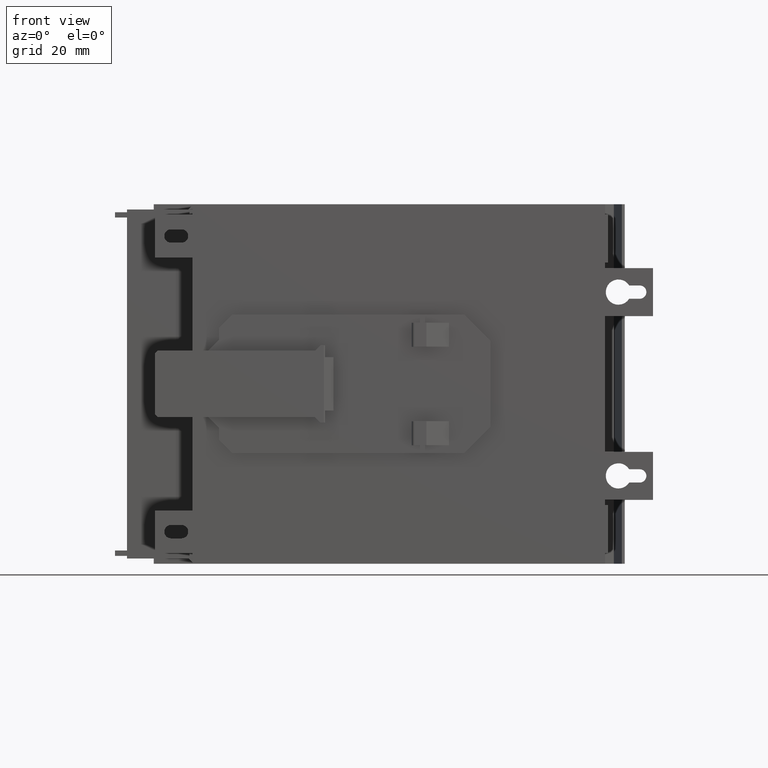
[diagram: clean part render]
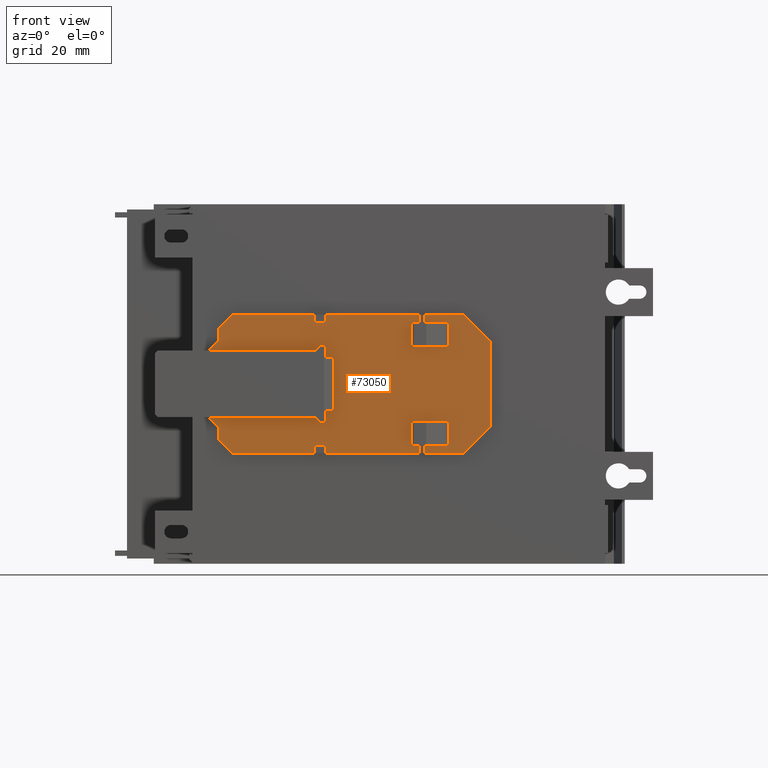
[diagram: same view with one face highlighted and labeled with its STEP entity id]
A machine part, front view. The second image highlights one B-rep face of the part: STEP entity #73050.
In plain terms, the highlighted planar face has unit normal (0, -1, 0).
Its self-contained STEP definition (entity closure, byte-faithful):
#64120=CARTESIAN_POINT('',(51.,-4.,-48.9));
#64130=VERTEX_POINT('',#64120);
#64160=CARTESIAN_POINT('',(25.,-4.,-48.9));
#64170=DIRECTION('',(-1.,0.,0.));
#64180=VECTOR('',#64170,1.);
#64190=LINE('',#64160,#64180);
#64200=CARTESIAN_POINT('',(48.,-4.,-48.9));
#64210=VERTEX_POINT('',#64200);
#64220=EDGE_CURVE('',#64130,#64210,#64190,.T.);
#64570=CARTESIAN_POINT('',(51.,-4.,-44.9));
#64580=VERTEX_POINT('',#64570);
#64630=CARTESIAN_POINT('',(51.,-4.,-66.65));
#64640=DIRECTION('',(0.,0.,1.));
#64650=VECTOR('',#64640,1.);
#64660=LINE('',#64630,#64650);
#64670=CARTESIAN_POINT('',(51.,-4.,-14.05));
#64680=VERTEX_POINT('',#64670);
#64690=EDGE_CURVE('',#64580,#64680,#64660,.T.);
#64910=CARTESIAN_POINT('',(51.,-4.,-101.05));
#64920=VERTEX_POINT('',#64910);
#64950=CARTESIAN_POINT('',(51.,-4.,-86.4));
#64960=VERTEX_POINT('',#64950);
#64970=EDGE_CURVE('',#64920,#64960,#64660,.T.);
#65190=CARTESIAN_POINT('',(51.,-4.,-84.4));
#65200=VERTEX_POINT('',#65190);
#65230=EDGE_CURVE('',#65200,#64130,#64660,.T.);
#65590=CARTESIAN_POINT('',(48.,-4.,-44.9));
#65600=VERTEX_POINT('',#65590);
#65630=CARTESIAN_POINT('',(25.,-4.,-44.8999999999999));
#65640=DIRECTION('',(1.,0.,0.));
#65650=VECTOR('',#65640,1.);
#65660=LINE('',#65630,#65650);
#65670=EDGE_CURVE('',#65600,#64580,#65660,.T.);
#65910=CARTESIAN_POINT('',(9.,-4.,-111.05));
#65920=VERTEX_POINT('',#65910);
#65950=CARTESIAN_POINT('',(25.,-4.,-111.05));
#65960=DIRECTION('',(1.,0.,0.));
#65970=VECTOR('',#65960,1.);
#65980=LINE('',#65950,#65970);
#65990=CARTESIAN_POINT('',(41.,-4.,-111.05));
#66000=VERTEX_POINT('',#65990);
#66010=EDGE_CURVE('',#65920,#66000,#65980,.T.);
#66330=CARTESIAN_POINT('',(25.,-4.,-127.05));
#66340=DIRECTION('',(0.707106781186548,0.,0.707106781186548));
#66350=VECTOR('',#66340,1.);
#66360=LINE('',#66330,#66350);
#66370=EDGE_CURVE('',#66000,#64920,#66360,.T.);
#66700=CARTESIAN_POINT('',(25.,-4.,-86.4));
#66710=DIRECTION('',(-1.,0.,0.));
#66720=VECTOR('',#66710,1.);
#66730=LINE('',#66700,#66720);
#66740=CARTESIAN_POINT('',(48.,-4.,-86.4));
#66750=VERTEX_POINT('',#66740);
#66760=EDGE_CURVE('',#64960,#66750,#66730,.T.);
#67130=CARTESIAN_POINT('',(39.,-4.,-84.4));
#67140=VERTEX_POINT('',#67130);
#67170=CARTESIAN_POINT('',(25.,-4.,-84.4));
#67180=DIRECTION('',(1.,0.,0.));
#67190=VECTOR('',#67180,1.);
#67200=LINE('',#67170,#67190);
#67210=EDGE_CURVE('',#67140,#65200,#67200,.T.);
#68870=CARTESIAN_POINT('',(39.,-4.,-95.39999999999));
#68880=VERTEX_POINT('',#68870);
#68910=CARTESIAN_POINT('',(39.,-4.,-66.65));
#68920=DIRECTION('',(0.,0.,-1.));
#68930=VECTOR('',#68920,1.);
#68940=LINE('',#68910,#68930);
#68950=EDGE_CURVE('',#67140,#68880,#68940,.T.);
#69570=CARTESIAN_POINT('',(48.,-4.,-95.39999999999));
#69580=VERTEX_POINT('',#69570);
#69610=CARTESIAN_POINT('',(25.,-4.,-95.4));
#69620=DIRECTION('',(1.,0.,0.));
#69630=VECTOR('',#69620,1.);
#69640=LINE('',#69610,#69630);
#69650=EDGE_CURVE('',#68880,#69580,#69640,.T.);
#70160=CARTESIAN_POINT('',(48.,-4.,-66.65));
#70170=DIRECTION('',(0.,0.,1.));
#70180=VECTOR('',#70170,1.);
#70190=LINE('',#70160,#70180);
#70200=EDGE_CURVE('',#69580,#66750,#70190,.T.);
#70620=CARTESIAN_POINT('',(31.347612,-4.,-29.997329));
#70630=DIRECTION('',(0.,-1.,0.));
#70640=DIRECTION('',(0.,0.,-1.));
#70650=AXIS2_PLACEMENT_3D('',#70620,#70630,#70640);
#70660=PLANE('',#70650);
#70670=CARTESIAN_POINT('',(25.,-4.,-9.04999999999999));
#70680=DIRECTION('',(-1.,0.,0.));
#70690=VECTOR('',#70680,1.);
#70700=LINE('',#70670,#70690);
#70710=CARTESIAN_POINT('',(46.,-4.,-9.04999999999999));
#70720=VERTEX_POINT('',#70710);
#70730=CARTESIAN_POINT('',(41.5,-4.,-9.04999999999999));
#70740=VERTEX_POINT('',#70730);
#70750=EDGE_CURVE('',#70720,#70740,#70700,.T.);
#70760=ORIENTED_EDGE('',*,*,#70750,.T.);
#70770=CARTESIAN_POINT('',(25.,-4.,11.95));
#70780=DIRECTION('',(-0.707106781186548,0.,0.707106781186548));
#70790=VECTOR('',#70780,1.);
#70800=LINE('',#70770,#70790);
#70810=EDGE_CURVE('',#64680,#70720,#70800,.T.);
#70820=ORIENTED_EDGE('',*,*,#70810,.T.);
#70830=ORIENTED_EDGE('',*,*,#64690,.T.);
#70840=ORIENTED_EDGE('',*,*,#65670,.T.);
#70850=CARTESIAN_POINT('',(48.,-4.,-66.65));
#70860=DIRECTION('',(0.,0.,1.));
#70870=VECTOR('',#70860,1.);
#70880=LINE('',#70850,#70870);
#70890=EDGE_CURVE('',#64210,#65600,#70880,.T.);
#70900=ORIENTED_EDGE('',*,*,#70890,.T.);
#70910=ORIENTED_EDGE('',*,*,#64220,.T.);
#70920=ORIENTED_EDGE('',*,*,#65230,.T.);
#70930=ORIENTED_EDGE('',*,*,#67210,.T.);
#70940=ORIENTED_EDGE('',*,*,#68950,.F.);
#70950=ORIENTED_EDGE('',*,*,#69650,.F.);
#70960=ORIENTED_EDGE('',*,*,#70200,.F.);
#70970=ORIENTED_EDGE('',*,*,#66760,.T.);
#70980=ORIENTED_EDGE('',*,*,#64970,.T.);
#70990=ORIENTED_EDGE('',*,*,#66370,.T.);
#71000=ORIENTED_EDGE('',*,*,#66010,.T.);
#71010=CARTESIAN_POINT('',(25.,-4.,-127.05));
#71020=DIRECTION('',(0.707106781186548,0.,-0.707106781186548));
#71030=VECTOR('',#71020,1.);
#71040=LINE('',#71010,#71030);
#71050=CARTESIAN_POINT('',(-0.999999999999996,-4.,-101.05));
#71060=VERTEX_POINT('',#71050);
#71070=EDGE_CURVE('',#71060,#65920,#71040,.T.);
#71080=ORIENTED_EDGE('',*,*,#71070,.T.);
#71090=CARTESIAN_POINT('',(-0.999999999999996,-4.,-66.65));
#71100=DIRECTION('',(0.,0.,-1.));
#71110=VECTOR('',#71100,1.);
#71120=LINE('',#71090,#71110);
#71130=CARTESIAN_POINT('',(-0.999999999999996,-4.,-86.4));
#71140=VERTEX_POINT('',#71130);
#71150=EDGE_CURVE('',#71140,#71060,#71120,.T.);
#71160=ORIENTED_EDGE('',*,*,#71150,.T.);
#71170=CARTESIAN_POINT('',(25.,-4.,-86.4));
#71180=DIRECTION('',(1.,0.,0.));
#71190=VECTOR('',#71180,1.);
#71200=LINE('',#71170,#71190);
#71210=CARTESIAN_POINT('',(2.,-4.,-86.4));
#71220=VERTEX_POINT('',#71210);
#71230=EDGE_CURVE('',#71140,#71220,#71200,.T.);
#71240=ORIENTED_EDGE('',*,*,#71230,.F.);
#71250=CARTESIAN_POINT('',(2.,-4.,-66.65));
#71260=DIRECTION('',(0.,0.,1.));
#71270=VECTOR('',#71260,1.);
#71280=LINE('',#71250,#71270);
#71290=CARTESIAN_POINT('',(2.,-4.,-95.4));
#71300=VERTEX_POINT('',#71290);
#71310=EDGE_CURVE('',#71300,#71220,#71280,.T.);
#71320=ORIENTED_EDGE('',*,*,#71310,.T.);
#71330=CARTESIAN_POINT('',(25.,-4.,-95.4));
#71340=DIRECTION('',(-1.,0.,0.));
#71350=VECTOR('',#71340,1.);
#71360=LINE('',#71330,#71350);
#71370=CARTESIAN_POINT('',(11.,-4.,-95.39999999999));
#71380=VERTEX_POINT('',#71370);
#71390=EDGE_CURVE('',#71380,#71300,#71360,.T.);
#71400=ORIENTED_EDGE('',*,*,#71390,.T.);
#71410=CARTESIAN_POINT('',(11.,-4.,-66.65));
#71420=DIRECTION('',(0.,0.,-1.));
#71430=VECTOR('',#71420,1.);
#71440=LINE('',#71410,#71430);
#71450=CARTESIAN_POINT('',(11.,-4.,-84.4));
#71460=VERTEX_POINT('',#71450);
#71470=EDGE_CURVE('',#71460,#71380,#71440,.T.);
#71480=ORIENTED_EDGE('',*,*,#71470,.T.);
#71490=CARTESIAN_POINT('',(25.,-4.,-84.4));
#71500=DIRECTION('',(-1.,0.,0.));
#71510=VECTOR('',#71500,1.);
#71520=LINE('',#71490,#71510);
#71530=CARTESIAN_POINT('',(-0.999999999999996,-4.,-84.4));
#71540=VERTEX_POINT('',#71530);
#71550=EDGE_CURVE('',#71460,#71540,#71520,.T.);
#71560=ORIENTED_EDGE('',*,*,#71550,.F.);
#71570=CARTESIAN_POINT('',(-0.999999999999996,-4.,-48.9));
#71580=VERTEX_POINT('',#71570);
#71590=EDGE_CURVE('',#71580,#71540,#71120,.T.);
#71600=ORIENTED_EDGE('',*,*,#71590,.T.);
#71610=CARTESIAN_POINT('',(25.,-4.,-48.9));
#71620=DIRECTION('',(1.,0.,0.));
#71630=VECTOR('',#71620,1.);
#71640=LINE('',#71610,#71630);
#71650=CARTESIAN_POINT('',(2.,-4.,-48.9));
#71660=VERTEX_POINT('',#71650);
#71670=EDGE_CURVE('',#71580,#71660,#71640,.T.);
#71680=ORIENTED_EDGE('',*,*,#71670,.F.);
#71690=CARTESIAN_POINT('',(2.,-4.,-66.65));
#71700=DIRECTION('',(0.,0.,1.));
#71710=VECTOR('',#71700,1.);
#71720=LINE('',#71690,#71710);
#71730=CARTESIAN_POINT('',(2.,-4.,-44.8999999999999));
#71740=VERTEX_POINT('',#71730);
#71750=EDGE_CURVE('',#71660,#71740,#71720,.T.);
#71760=ORIENTED_EDGE('',*,*,#71750,.F.);
#71770=CARTESIAN_POINT('',(25.,-4.,-44.8999999999999));
#71780=DIRECTION('',(-1.,0.,0.));
#71790=VECTOR('',#71780,1.);
#71800=LINE('',#71770,#71790);
#71810=CARTESIAN_POINT('',(-0.999999999999996,-4.,-44.8999999999999));
#71820=VERTEX_POINT('',#71810);
#71830=EDGE_CURVE('',#71740,#71820,#71800,.T.);
#71840=ORIENTED_EDGE('',*,*,#71830,.F.);
#71850=CARTESIAN_POINT('',(-0.999999999999996,-4.,-14.05));
#71860=VERTEX_POINT('',#71850);
#71870=EDGE_CURVE('',#71860,#71820,#71120,.T.);
#71880=ORIENTED_EDGE('',*,*,#71870,.T.);
#71890=CARTESIAN_POINT('',(-53.5999999999919,-4.,-66.65));
#71900=DIRECTION('',(-0.707106781186498,0.,-0.707106781186598));
#71910=VECTOR('',#71900,1.);
#71920=LINE('',#71890,#71910);
#71930=CARTESIAN_POINT('',(4.,-4.,-9.04999999999999));
#71940=VERTEX_POINT('',#71930);
#71950=EDGE_CURVE('',#71940,#71860,#71920,.T.);
#71960=ORIENTED_EDGE('',*,*,#71950,.T.);
#71970=CARTESIAN_POINT('',(8.5,-4.,-9.04999999999999));
#71980=VERTEX_POINT('',#71970);
#71990=EDGE_CURVE('',#71980,#71940,#70700,.T.);
#72000=ORIENTED_EDGE('',*,*,#71990,.T.);
#72010=CARTESIAN_POINT('',(12.5,-4.,-5.04999999999999));
#72020=DIRECTION('',(-0.707106781186548,0.,-0.707106781186548));
#72030=VECTOR('',#72020,5.656854249492);
#72040=LINE('',#72010,#72030);
#72050=CARTESIAN_POINT('',(12.5,-4.,-5.05));
#72060=VERTEX_POINT('',#72050);
#72070=EDGE_CURVE('',#72060,#71980,#72040,.T.);
#72080=ORIENTED_EDGE('',*,*,#72070,.T.);
#72090=CARTESIAN_POINT('',(12.5,-4.,-66.65));
#72100=DIRECTION('',(0.,0.,-1.));
#72110=VECTOR('',#72100,1.);
#72120=LINE('',#72090,#72110);
#72130=CARTESIAN_POINT('',(12.5,-4.,-45.1));
#72140=VERTEX_POINT('',#72130);
#72150=EDGE_CURVE('',#72060,#72140,#72120,.T.);
#72160=ORIENTED_EDGE('',*,*,#72150,.F.);
#72170=CARTESIAN_POINT('',(-9.04999999999696,-4.,-66.65));
#72180=DIRECTION('',(-0.707106781186498,0.,-0.707106781186598));
#72190=VECTOR('',#72180,1.);
#72200=LINE('',#72170,#72190);
#72210=CARTESIAN_POINT('',(10.4999999999951,-4.,-47.1000000000051));
#72220=VERTEX_POINT('',#72210);
#72230=EDGE_CURVE('',#72140,#72220,#72200,.T.);
#72240=ORIENTED_EDGE('',*,*,#72230,.F.);
#72250=CARTESIAN_POINT('',(10.5,-4.,-66.65));
#72260=DIRECTION('',(0.,0.,-1.));
#72270=VECTOR('',#72260,1.);
#72280=LINE('',#72250,#72270);
#72290=CARTESIAN_POINT('',(10.5,-4.,-48.9));
#72300=VERTEX_POINT('',#72290);
#72310=EDGE_CURVE('',#72220,#72300,#72280,.T.);
#72320=ORIENTED_EDGE('',*,*,#72310,.F.);
#72330=CARTESIAN_POINT('',(25.,-4.,-48.9));
#72340=DIRECTION('',(1.,0.,0.));
#72350=VECTOR('',#72340,1.);
#72360=LINE('',#72330,#72350);
#72370=CARTESIAN_POINT('',(15.,-4.,-48.9));
#72380=VERTEX_POINT('',#72370);
#72390=EDGE_CURVE('',#72300,#72380,#72360,.T.);
#72400=ORIENTED_EDGE('',*,*,#72390,.F.);
#72410=CARTESIAN_POINT('',(15.0000000000003,-4.,-66.65));
#72420=DIRECTION('',(-1.577318208915E-14,0.,1.));
#72430=VECTOR('',#72420,1.);
#72440=LINE('',#72410,#72430);
#72450=CARTESIAN_POINT('',(15.,-4.,-49.4));
#72460=VERTEX_POINT('',#72450);
#72470=EDGE_CURVE('',#72460,#72380,#72440,.T.);
#72480=ORIENTED_EDGE('',*,*,#72470,.T.);
#72490=CARTESIAN_POINT('',(25.,-4.,-49.4));
#72500=DIRECTION('',(1.,0.,0.));
#72510=VECTOR('',#72500,1.);
#72520=LINE('',#72490,#72510);
#72530=CARTESIAN_POINT('',(35.,-4.,-49.4));
#72540=VERTEX_POINT('',#72530);
#72550=EDGE_CURVE('',#72460,#72540,#72520,.T.);
#72560=ORIENTED_EDGE('',*,*,#72550,.F.);
#72570=CARTESIAN_POINT('',(35.,-4.,-66.65));
#72580=DIRECTION('',(0.,0.,-1.));
#72590=VECTOR('',#72580,1.);
#72600=LINE('',#72570,#72590);
#72610=CARTESIAN_POINT('',(35.,-4.,-48.9));
#72620=VERTEX_POINT('',#72610);
#72630=EDGE_CURVE('',#72620,#72540,#72600,.T.);
#72640=ORIENTED_EDGE('',*,*,#72630,.T.);
#72650=CARTESIAN_POINT('',(25.,-4.,-48.9));
#72660=DIRECTION('',(-1.,0.,0.));
#72670=VECTOR('',#72660,1.);
#72680=LINE('',#72650,#72670);
#72690=CARTESIAN_POINT('',(39.5,-4.,-48.9));
#72700=VERTEX_POINT('',#72690);
#72710=EDGE_CURVE('',#72700,#72620,#72680,.T.);
#72720=ORIENTED_EDGE('',*,*,#72710,.T.);
#72730=CARTESIAN_POINT('',(39.5,-4.,-66.65));
#72740=DIRECTION('',(0.,0.,-1.));
#72750=VECTOR('',#72740,1.);
#72760=LINE('',#72730,#72750);
#72770=CARTESIAN_POINT('',(39.5000000000049,-4.,-47.1000000000051));
#72780=VERTEX_POINT('',#72770);
#72790=EDGE_CURVE('',#72780,#72700,#72760,.T.);
#72800=ORIENTED_EDGE('',*,*,#72790,.T.);
#72810=CARTESIAN_POINT('',(59.049999999997,-4.,-66.65));
#72820=DIRECTION('',(0.707106781186498,0.,-0.707106781186598));
#72830=VECTOR('',#72820,1.);
#72840=LINE('',#72810,#72830);
#72850=CARTESIAN_POINT('',(37.5,-4.,-45.1));
#72860=VERTEX_POINT('',#72850);
#72870=EDGE_CURVE('',#72860,#72780,#72840,.T.);
#72880=ORIENTED_EDGE('',*,*,#72870,.T.);
#72890=CARTESIAN_POINT('',(37.5,-4.,-66.65));
#72900=DIRECTION('',(0.,0.,-1.));
#72910=VECTOR('',#72900,1.);
#72920=LINE('',#72890,#72910);
#72930=CARTESIAN_POINT('',(37.5,-4.,-5.04999999999998));
#72940=VERTEX_POINT('',#72930);
#72950=EDGE_CURVE('',#72940,#72860,#72920,.T.);
#72960=ORIENTED_EDGE('',*,*,#72950,.T.);
#72970=CARTESIAN_POINT('',(37.5,-4.,-5.04999999999999));
#72980=DIRECTION('',(0.707106781186548,0.,-0.707106781186548));
#72990=VECTOR('',#72980,5.656854249492);
#73000=LINE('',#72970,#72990);
#73010=EDGE_CURVE('',#72940,#70740,#73000,.T.);
#73020=ORIENTED_EDGE('',*,*,#73010,.F.);
#73030=EDGE_LOOP('',(#73020,#72960,#72880,#72800,#72720,#72640,#72560,
#72480,#72400,#72320,#72240,#72160,#72080,#72000,#71960,#71880,#71840,
#71760,#71680,#71600,#71560,#71480,#71400,#71320,#71240,#71160,#71080,
#71000,#70990,#70980,#70970,#70960,#70950,#70940,#70930,#70920,#70910,
#70900,#70840,#70830,#70820,#70760));
#73040=FACE_OUTER_BOUND('',#73030,.T.);
#73050=ADVANCED_FACE('',(#73040),#70660,.T.);